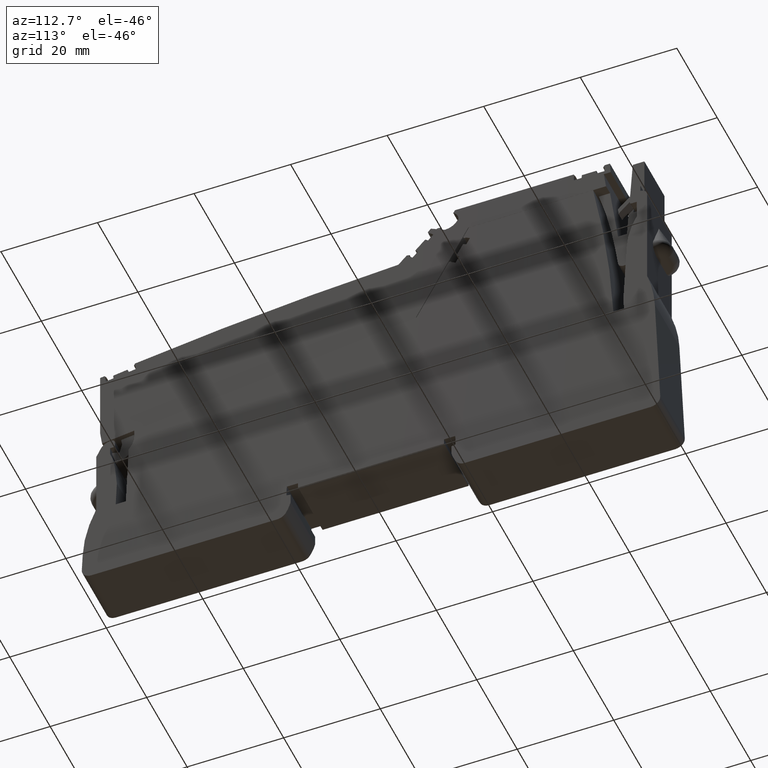
[diagram: clean part render]
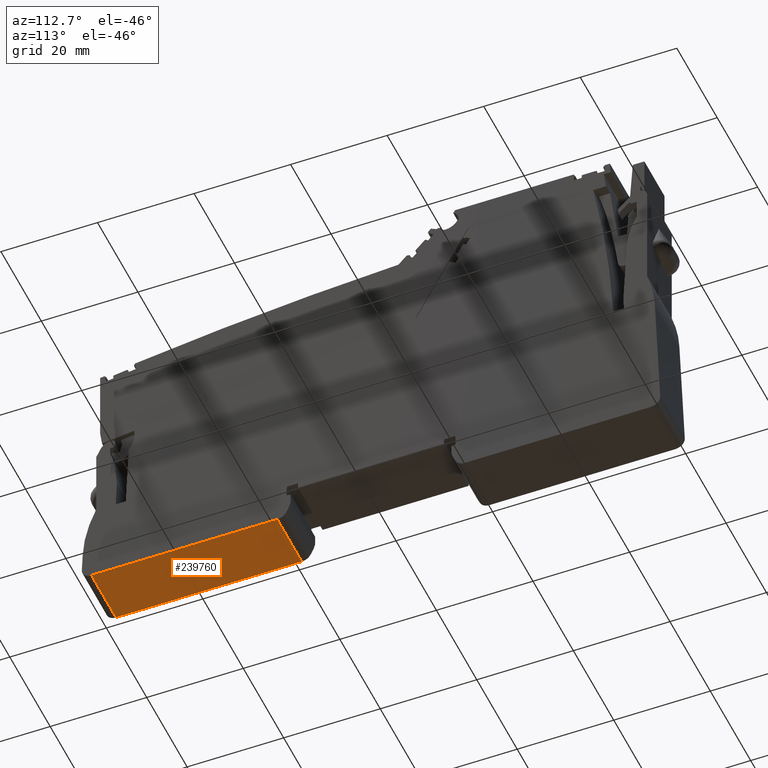
[diagram: same view with one face highlighted and labeled with its STEP entity id]
A machine part, auxiliary view. The second image highlights one B-rep face of the part: STEP entity #239760.
In plain terms, the highlighted planar face has unit normal (0, 0, 1).
Its self-contained STEP definition (entity closure, byte-faithful):
#177820=CARTESIAN_POINT('',(217.09468547299,-62.9542780967929,36.45));
#177830=VERTEX_POINT('',#177820);
#177860=CARTESIAN_POINT('',(217.456642799386,-62.9542780967929,36.45));
#177870=DIRECTION('',(1.,0.,0.));
#177880=VECTOR('',#177870,1.);
#177890=LINE('',#177860,#177880);
#177900=CARTESIAN_POINT('',(178.617847465003,-62.9542780967929,36.45));
#177910=VERTEX_POINT('',#177900);
#177920=EDGE_CURVE('',#177910,#177830,#177890,.T.);
#183600=CARTESIAN_POINT('',(178.617847465003,-62.9542780967929,24.3));
#183610=VERTEX_POINT('',#183600);
#183640=CARTESIAN_POINT('',(217.456642799386,-62.9542780967929,24.3));
#183650=DIRECTION('',(-1.,0.,0.));
#183660=VECTOR('',#183650,1.);
#183670=LINE('',#183640,#183660);
#183680=CARTESIAN_POINT('',(217.09468547299,-62.9542780967929,24.3));
#183690=VERTEX_POINT('',#183680);
#183700=EDGE_CURVE('',#183690,#183610,#183670,.T.);
#239440=CARTESIAN_POINT('',(178.617847465003,-62.9542780967929,24.3));
#239450=DIRECTION('',(0.,1.19110369467609E-44,1.));
#239460=VECTOR('',#239450,1.);
#239470=LINE('',#239440,#239460);
#239480=EDGE_CURVE('',#183610,#177910,#239470,.T.);
#239600=CARTESIAN_POINT('',(178.617847465003,-62.9542780967929,24.3));
#239610=DIRECTION('',(0.,1.,-1.19110369467609E-44));
#239620=DIRECTION('',(-1.,0.,0.));
#239630=AXIS2_PLACEMENT_3D('',#239600,#239610,#239620);
#239640=PLANE('',#239630);
#239650=CARTESIAN_POINT('',(217.09468547299,-62.9542780967925,24.3));
#239660=DIRECTION('',(0.,1.19110369467609E-44,1.));
#239670=VECTOR('',#239660,1.);
#239680=LINE('',#239650,#239670);
#239690=EDGE_CURVE('',#183690,#177830,#239680,.T.);
#239700=ORIENTED_EDGE('',*,*,#239690,.T.);
#239710=ORIENTED_EDGE('',*,*,#183700,.F.);
#239720=ORIENTED_EDGE('',*,*,#239480,.F.);
#239730=ORIENTED_EDGE('',*,*,#177920,.F.);
#239740=EDGE_LOOP('',(#239730,#239720,#239710,#239700));
#239750=FACE_OUTER_BOUND('',#239740,.T.);
#239760=ADVANCED_FACE('',(#239750),#239640,.F.);